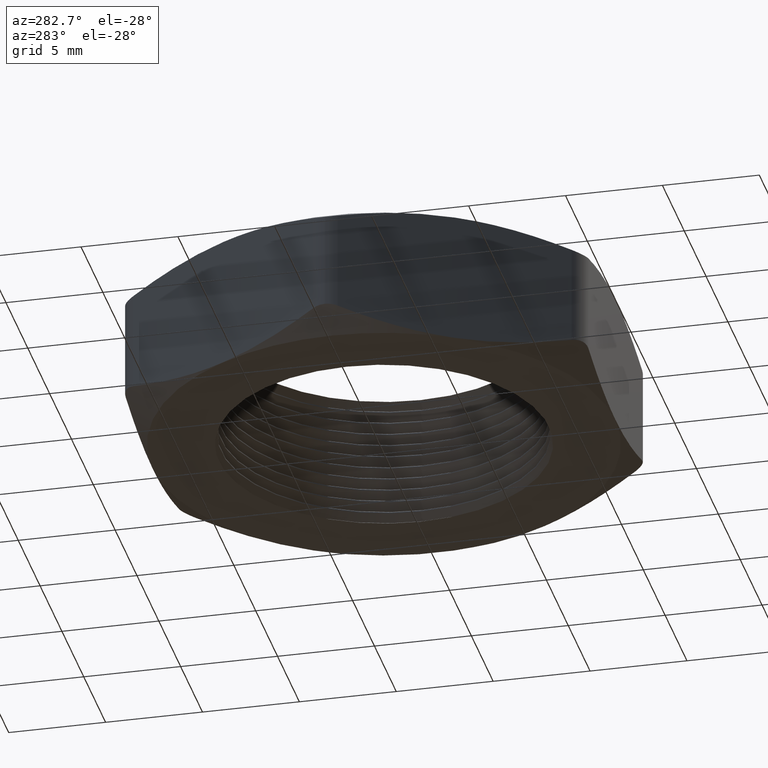
[diagram: clean part render]
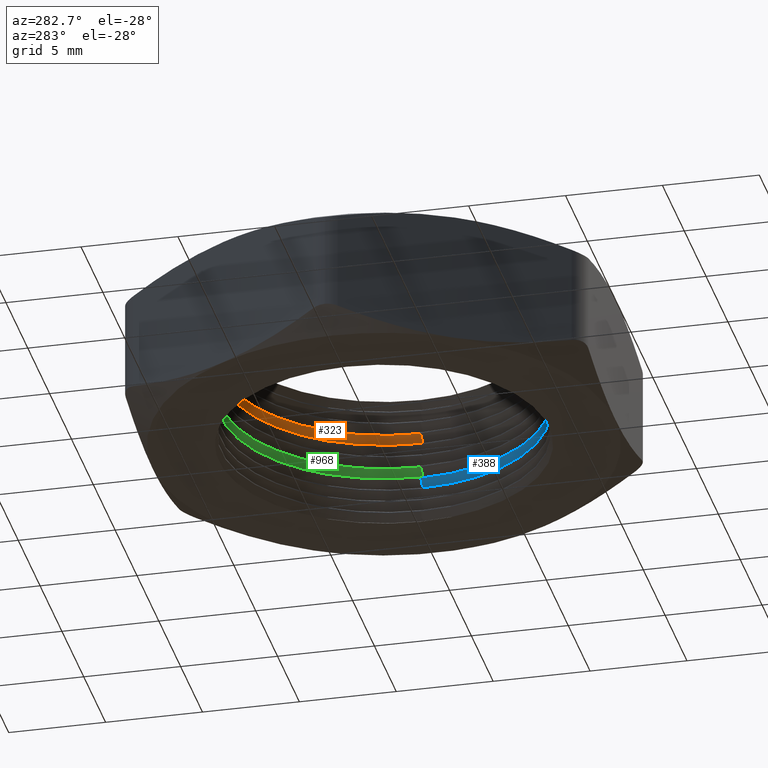
[diagram: same view with three faces highlighted in distinct colors, each labeled with its STEP entity id]
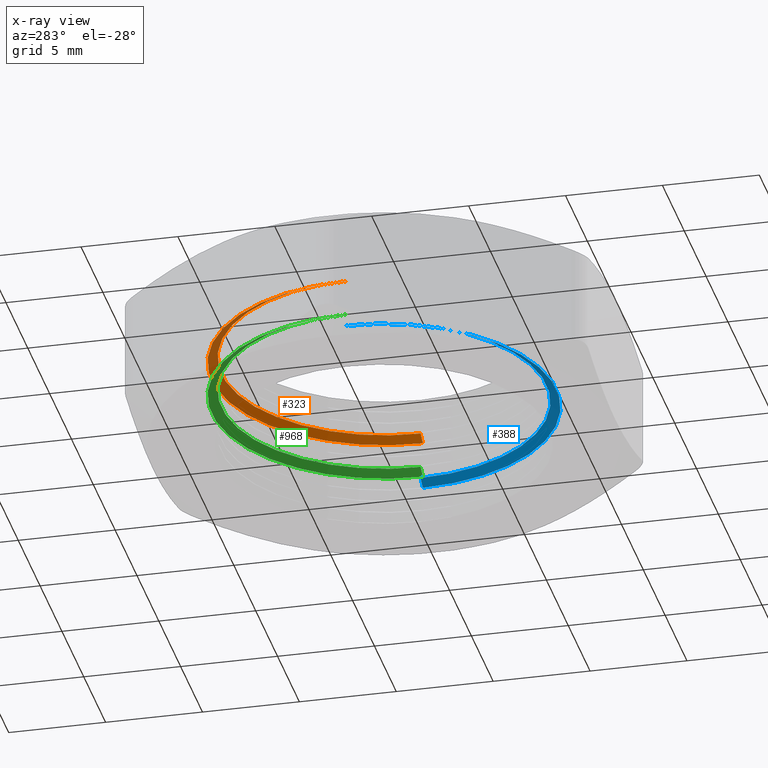
[diagram: x-ray of the same camera — body ghosted, the three highlighted faces saturated]
A machine part, auxiliary view with three faces highlighted in distinct colors.
The next image is the same camera in x-ray (body ghosted, the three faces saturated) — at least one of them is partly hidden behind the body in this view.
Their STEP definitions:

[orange] entity #323 — the highlighted conical surface has half-angle 60 deg.
#4 = VERTEX_POINT ( 'NONE', #531 ) ;
#6 = VERTEX_POINT ( 'NONE', #530 ) ;
#10 = EDGE_CURVE ( 'NONE', #14, #4, #519, .T. ) ;
#14 = VERTEX_POINT ( 'NONE', #508 ) ;
#15 = VERTEX_POINT ( 'NONE', #507 ) ;
#16 = EDGE_CURVE ( 'NONE', #6, #15, #569, .T. ) ;
#280 = EDGE_CURVE ( 'NONE', #15, #4, #1211, .T. ) ;
#282 = ORIENTED_EDGE ( 'NONE', *, *, #280, .F. ) ;
#283 = ORIENTED_EDGE ( 'NONE', *, *, #10, .T. ) ;
#317 = ORIENTED_EDGE ( 'NONE', *, *, #16, .F. ) ;
#318 = ORIENTED_EDGE ( 'NONE', *, *, #2532, .T. ) ;
#323 = ADVANCED_FACE ( 'NONE', ( #1230 ), #1225, .F. ) ;
#326 = EDGE_LOOP ( 'NONE', ( #317, #318, #283, #282 ) ) ;
#507 = CARTESIAN_POINT ( 'NONE',  ( 0.3500000000000000300, 4.286263797015736600E-017, 0.1834529946162077900 ) ) ;
#508 = CARTESIAN_POINT ( 'NONE',  ( -0.3300000000000000200, 0.0000000000000000000, 0.1950000000000000300 ) ) ;
#516 = DIRECTION ( 'NONE',  ( -0.8660254037844434800, 0.0000000000000000000, -0.4999999999999913400 ) ) ;
#517 = VECTOR ( 'NONE', #516, 39.37007874015748900 ) ;
#518 = CARTESIAN_POINT ( 'NONE',  ( -0.3500000000000000300, 0.0000000000000000000, 0.1834529946162077900 ) ) ;
#519 = LINE ( 'NONE', #518, #517 ) ;
#530 = CARTESIAN_POINT ( 'NONE',  ( 0.3300000000000000200, 4.041334437186265900E-017, 0.1950000000000000300 ) ) ;
#531 = CARTESIAN_POINT ( 'NONE',  ( -0.3500000000000000300, 0.0000000000000000000, 0.1834529946162077900 ) ) ;
#566 = DIRECTION ( 'NONE',  ( 0.8660254037844434800, 1.060575238724912700E-016, -0.4999999999999913400 ) ) ;
#567 = VECTOR ( 'NONE', #566, 39.37007874015748900 ) ;
#568 = CARTESIAN_POINT ( 'NONE',  ( 0.3500000000000000300, 4.286263797015736600E-017, 0.1834529946162077900 ) ) ;
#569 = LINE ( 'NONE', #568, #567 ) ;
#1207 = DIRECTION ( 'NONE',  ( 1.000000000000000000, 0.0000000000000000000, 0.0000000000000000000 ) ) ;
#1208 = DIRECTION ( 'NONE',  ( 0.0000000000000000000, 0.0000000000000000000, 1.000000000000000000 ) ) ;
#1209 = CARTESIAN_POINT ( 'NONE',  ( 0.0000000000000000000, 0.0000000000000000000, 0.1834529946162077900 ) ) ;
#1210 = AXIS2_PLACEMENT_3D ( 'NONE', #1209, #1208, #1207 ) ;
#1211 = CIRCLE ( 'NONE', #1210, 0.3500000000000000300 ) ;
#1221 = DIRECTION ( 'NONE',  ( -1.000000000000000000, 0.0000000000000000000, 0.0000000000000000000 ) ) ;
#1222 = DIRECTION ( 'NONE',  ( 0.0000000000000000000, 0.0000000000000000000, -1.000000000000000000 ) ) ;
#1223 = CARTESIAN_POINT ( 'NONE',  ( 0.0000000000000000000, 0.0000000000000000000, 0.1834529946162077900 ) ) ;
#1224 = AXIS2_PLACEMENT_3D ( 'NONE', #1223, #1222, #1221 ) ;
#1225 = CONICAL_SURFACE ( 'NONE', #1224, 0.3500000000000000300, 1.047197551196607600 ) ;
#1230 = FACE_OUTER_BOUND ( 'NONE', #326, .T. ) ;
#1923 = DIRECTION ( 'NONE',  ( 1.000000000000000000, 0.0000000000000000000, 0.0000000000000000000 ) ) ;
#1924 = DIRECTION ( 'NONE',  ( 0.0000000000000000000, 0.0000000000000000000, 1.000000000000000000 ) ) ;
#1925 = CARTESIAN_POINT ( 'NONE',  ( 0.0000000000000000000, 0.0000000000000000000, 0.1950000000000000300 ) ) ;
#1926 = AXIS2_PLACEMENT_3D ( 'NONE', #1925, #1924, #1923 ) ;
#1927 = CIRCLE ( 'NONE', #1926, 0.3300000000000000200 ) ;
#2532 = EDGE_CURVE ( 'NONE', #6, #14, #1927, .T. ) ;

[blue] entity #388 — the highlighted conical surface has half-angle 60 deg.
#388 = ADVANCED_FACE ( 'NONE', ( #1333 ), #1332, .F. ) ;
#393 = EDGE_CURVE ( 'NONE', #396, #402, #1374, .T. ) ;
#396 = VERTEX_POINT ( 'NONE', #1365 ) ;
#402 = VERTEX_POINT ( 'NONE', #1414 ) ;
#1327 = DIRECTION ( 'NONE',  ( -1.000000000000000000, 0.0000000000000000000, 0.0000000000000000000 ) ) ;
#1328 = DIRECTION ( 'NONE',  ( 0.0000000000000000000, 0.0000000000000000000, -1.000000000000000000 ) ) ;
#1329 = CARTESIAN_POINT ( 'NONE',  ( 0.0000000000000000000, 0.0000000000000000000, 0.08345299461620776800 ) ) ;
#1330 = AXIS2_PLACEMENT_3D ( 'NONE', #1329, #1328, #1327 ) ;
#1332 = CONICAL_SURFACE ( 'NONE', #1330, 0.3500000000000000300, 1.047197551196607600 ) ;
#1333 = FACE_OUTER_BOUND ( 'NONE', #2349, .T. ) ;
#1365 = CARTESIAN_POINT ( 'NONE',  ( -0.3500000000000000300, 0.0000000000000000000, 0.08345299461620776800 ) ) ;
#1370 = DIRECTION ( 'NONE',  ( 1.000000000000000000, 0.0000000000000000000, 0.0000000000000000000 ) ) ;
#1371 = DIRECTION ( 'NONE',  ( 0.0000000000000000000, 0.0000000000000000000, 1.000000000000000000 ) ) ;
#1372 = CARTESIAN_POINT ( 'NONE',  ( 0.0000000000000000000, 0.0000000000000000000, 0.08345299461620776800 ) ) ;
#1373 = AXIS2_PLACEMENT_3D ( 'NONE', #1372, #1371, #1370 ) ;
#1374 = CIRCLE ( 'NONE', #1373, 0.3500000000000000300 ) ;
#1414 = CARTESIAN_POINT ( 'NONE',  ( 0.3500000000000000300, 4.286263797015736600E-017, 0.08345299461620776800 ) ) ;
#1583 = CARTESIAN_POINT ( 'NONE',  ( -0.3300000000000000200, 0.0000000000000000000, 0.09500000000000001500 ) ) ;
#1584 = CARTESIAN_POINT ( 'NONE',  ( 0.3300000000000000200, 4.041334437186265900E-017, 0.09500000000000001500 ) ) ;
#1612 = DIRECTION ( 'NONE',  ( 0.8660254037844434800, 1.060575238724912700E-016, -0.4999999999999913400 ) ) ;
#1613 = VECTOR ( 'NONE', #1612, 39.37007874015748900 ) ;
#1614 = CARTESIAN_POINT ( 'NONE',  ( 0.3500000000000000300, 4.286263797015736600E-017, 0.08345299461620776800 ) ) ;
#1615 = LINE ( 'NONE', #1614, #1613 ) ;
#1616 = DIRECTION ( 'NONE',  ( -0.8660254037844434800, 0.0000000000000000000, -0.4999999999999913400 ) ) ;
#1617 = VECTOR ( 'NONE', #1616, 39.37007874015748900 ) ;
#1618 = CARTESIAN_POINT ( 'NONE',  ( -0.3500000000000000300, 0.0000000000000000000, 0.08345299461620776800 ) ) ;
#1619 = LINE ( 'NONE', #1618, #1617 ) ;
#1670 = DIRECTION ( 'NONE',  ( 1.000000000000000000, 0.0000000000000000000, 0.0000000000000000000 ) ) ;
#1671 = DIRECTION ( 'NONE',  ( 0.0000000000000000000, 0.0000000000000000000, 1.000000000000000000 ) ) ;
#1672 = CARTESIAN_POINT ( 'NONE',  ( 0.0000000000000000000, 0.0000000000000000000, 0.09500000000000001500 ) ) ;
#1673 = AXIS2_PLACEMENT_3D ( 'NONE', #1672, #1671, #1670 ) ;
#1674 = CIRCLE ( 'NONE', #1673, 0.3300000000000000200 ) ;
#2345 = VERTEX_POINT ( 'NONE', #1584 ) ;
#2346 = ORIENTED_EDGE ( 'NONE', *, *, #2365, .T. ) ;
#2347 = VERTEX_POINT ( 'NONE', #1583 ) ;
#2348 = ORIENTED_EDGE ( 'NONE', *, *, #2368, .T. ) ;
#2349 = EDGE_LOOP ( 'NONE', ( #2348, #2346, #2362, #2363 ) ) ;
#2362 = ORIENTED_EDGE ( 'NONE', *, *, #393, .F. ) ;
#2363 = ORIENTED_EDGE ( 'NONE', *, *, #2364, .F. ) ;
#2364 = EDGE_CURVE ( 'NONE', #2347, #396, #1619, .T. ) ;
#2365 = EDGE_CURVE ( 'NONE', #2345, #402, #1615, .T. ) ;
#2368 = EDGE_CURVE ( 'NONE', #2347, #2345, #1674, .T. ) ;

[green] entity #968 — the highlighted conical surface has half-angle 60 deg.
#392 = EDGE_CURVE ( 'NONE', #2456, #2457, #1379, .T. ) ;
#734 = EDGE_LOOP ( 'NONE', ( #976, #974, #975, #2372 ) ) ;
#968 = ADVANCED_FACE ( 'NONE', ( #1557 ), #1556, .F. ) ;
#974 = ORIENTED_EDGE ( 'NONE', *, *, #392, .T. ) ;
#975 = ORIENTED_EDGE ( 'NONE', *, *, #2437, .T. ) ;
#976 = ORIENTED_EDGE ( 'NONE', *, *, #2452, .F. ) ;
#1375 = DIRECTION ( 'NONE',  ( 1.000000000000000000, 0.0000000000000000000, 0.0000000000000000000 ) ) ;
#1376 = DIRECTION ( 'NONE',  ( 0.0000000000000000000, 0.0000000000000000000, 1.000000000000000000 ) ) ;
#1377 = CARTESIAN_POINT ( 'NONE',  ( 0.0000000000000000000, 0.0000000000000000000, 0.1200000000000000200 ) ) ;
#1378 = AXIS2_PLACEMENT_3D ( 'NONE', #1377, #1376, #1375 ) ;
#1379 = CIRCLE ( 'NONE', #1378, 0.3300000000000000200 ) ;
#1552 = DIRECTION ( 'NONE',  ( -1.000000000000000000, 0.0000000000000000000, 0.0000000000000000000 ) ) ;
#1553 = DIRECTION ( 'NONE',  ( 0.0000000000000000000, 0.0000000000000000000, -1.000000000000000000 ) ) ;
#1554 = AXIS2_PLACEMENT_3D ( 'NONE', #1561, #1553, #1552 ) ;
#1556 = CONICAL_SURFACE ( 'NONE', #1554, 0.3500000000000000300, 1.047197551196607600 ) ;
#1557 = FACE_OUTER_BOUND ( 'NONE', #734, .T. ) ;
#1561 = CARTESIAN_POINT ( 'NONE',  ( 0.0000000000000000000, 0.0000000000000000000, 0.1084529946162077800 ) ) ;
#1653 = DIRECTION ( 'NONE',  ( 1.000000000000000000, 0.0000000000000000000, 0.0000000000000000000 ) ) ;
#1654 = DIRECTION ( 'NONE',  ( 0.0000000000000000000, 0.0000000000000000000, 1.000000000000000000 ) ) ;
#1655 = AXIS2_PLACEMENT_3D ( 'NONE', #1660, #1654, #1653 ) ;
#1656 = CIRCLE ( 'NONE', #1655, 0.3500000000000000300 ) ;
#1660 = CARTESIAN_POINT ( 'NONE',  ( 0.0000000000000000000, 0.0000000000000000000, 0.1084529946162077800 ) ) ;
#1715 = CARTESIAN_POINT ( 'NONE',  ( 0.3500000000000000300, 4.286263797015736600E-017, 0.1084529946162077800 ) ) ;
#1739 = DIRECTION ( 'NONE',  ( -0.8660254037844434800, 0.0000000000000000000, -0.4999999999999913400 ) ) ;
#1740 = VECTOR ( 'NONE', #1739, 39.37007874015748900 ) ;
#1741 = CARTESIAN_POINT ( 'NONE',  ( -0.3500000000000000300, 0.0000000000000000000, 0.1084529946162077800 ) ) ;
#1742 = LINE ( 'NONE', #1741, #1740 ) ;
#1747 = CARTESIAN_POINT ( 'NONE',  ( -0.3500000000000000300, 0.0000000000000000000, 0.1084529946162077800 ) ) ;
#1771 = CARTESIAN_POINT ( 'NONE',  ( -0.3300000000000000200, 0.0000000000000000000, 0.1200000000000000200 ) ) ;
#1772 = CARTESIAN_POINT ( 'NONE',  ( 0.3300000000000000200, 4.041334437186265900E-017, 0.1200000000000000200 ) ) ;
#1778 = DIRECTION ( 'NONE',  ( 0.8660254037844434800, 1.060575238724912700E-016, -0.4999999999999913400 ) ) ;
#1779 = VECTOR ( 'NONE', #1778, 39.37007874015748900 ) ;
#1780 = CARTESIAN_POINT ( 'NONE',  ( 0.3500000000000000300, 4.286263797015736600E-017, 0.1084529946162077800 ) ) ;
#1781 = LINE ( 'NONE', #1780, #1779 ) ;
#2372 = ORIENTED_EDGE ( 'NONE', *, *, #2374, .F. ) ;
#2374 = EDGE_CURVE ( 'NONE', #2413, #2433, #1656, .T. ) ;
#2413 = VERTEX_POINT ( 'NONE', #1715 ) ;
#2433 = VERTEX_POINT ( 'NONE', #1747 ) ;
#2437 = EDGE_CURVE ( 'NONE', #2457, #2433, #1742, .T. ) ;
#2452 = EDGE_CURVE ( 'NONE', #2456, #2413, #1781, .T. ) ;
#2456 = VERTEX_POINT ( 'NONE', #1772 ) ;
#2457 = VERTEX_POINT ( 'NONE', #1771 ) ;